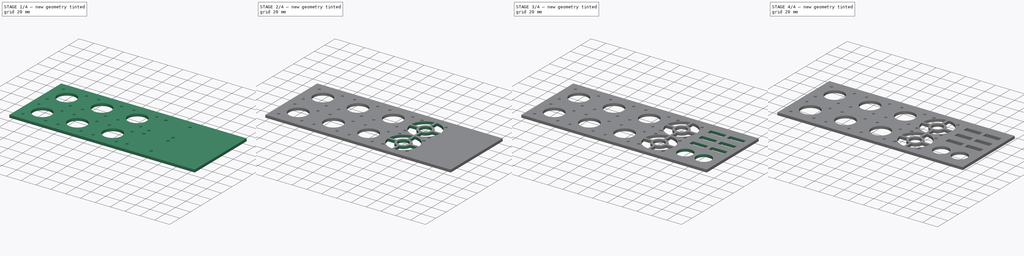
[diagram: build sequence overview — one tinted view per stage of 4, left to right]
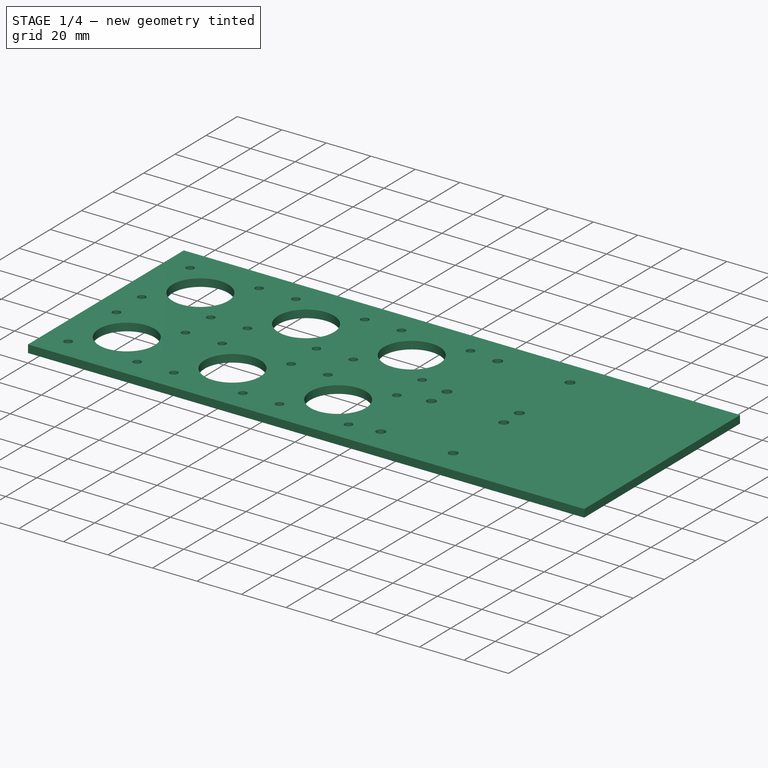
[diagram: stage 1 of 4 — iso view after this stage's code; geometry added in this stage tinted green]
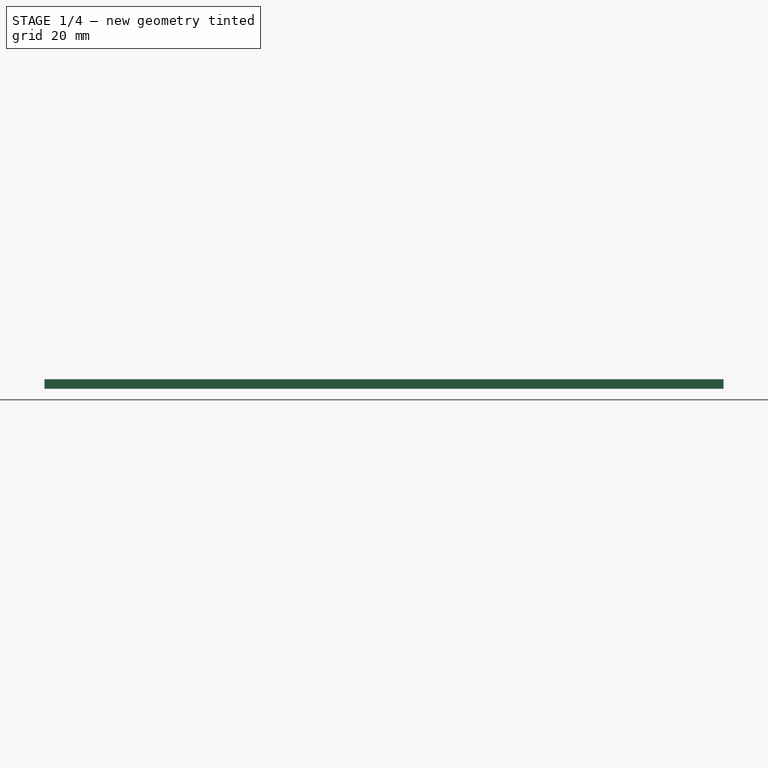
[diagram: stage 1 of 4 — front view after this stage's code; geometry added in this stage tinted green]
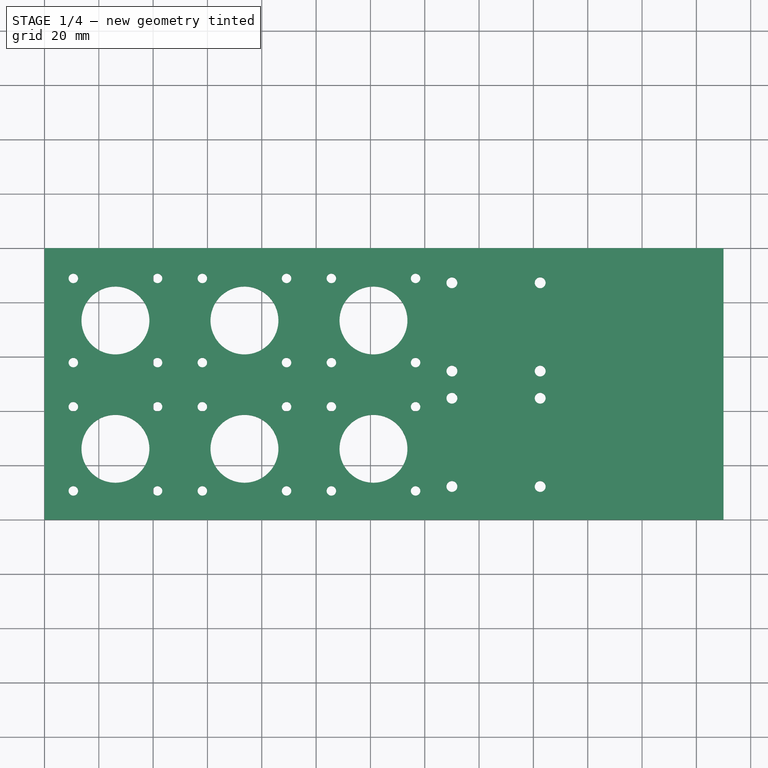
[diagram: stage 1 of 4 — top view after this stage's code; geometry added in this stage tinted green]
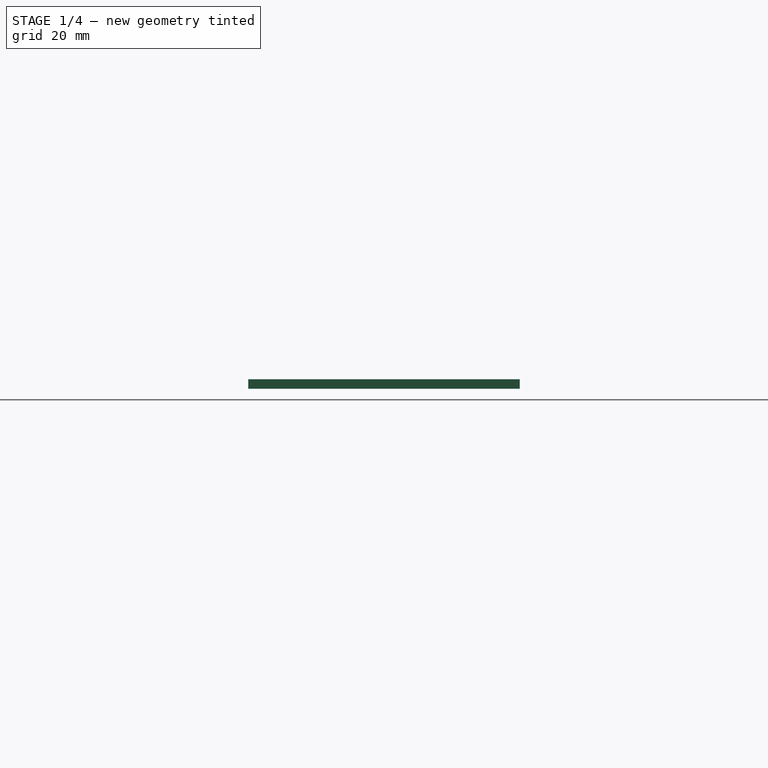
[diagram: stage 1 of 4 — right view after this stage's code; geometry added in this stage tinted green]
FCSTD DOCUMENT  (FreeCAD 0.16R5861 (Git))
Label: control_box_test_fixture_front
License: CreativeCommons Attribution-ShareAlike
LicenseURL: http://creativecommons.org/licenses/by-sa/4.0/
objects: Sketcher::SketchObject×9, PartDesign::Pocket×7, PartDesign::LinearPattern×4, PartDesign::Pad×2, PartDesign::Fillet×1
note: 32 computed .brp shape members not serialized (recipe doc carries the construction recipe); baked Part::Feature solids carry a one-line shape summary decoded from their .brp

FEATURE [Sketcher::SketchObject] Sketch
  sketch-geometry (4):
    g0: LineSegment StartX=0 StartY=0 StartZ=0 EndX=250 EndY=0 EndZ=0
    g1: LineSegment StartX=250 StartY=0 StartZ=0 EndX=250 EndY=100 EndZ=0
    g2: LineSegment StartX=250 StartY=100 StartZ=0 EndX=0 EndY=100 EndZ=0
    g3: LineSegment StartX=0 StartY=100 StartZ=0 EndX=0 EndY=0 EndZ=0
  constraints (11):
    c: Coincident(g0,g1)
    c: Coincident(g1,g2)
    c: Coincident(g2,g3)
    c: Coincident(g3,g0)
    c: Horizontal(g0)
    c: Horizontal(g2)
    c: Vertical(g1)
    c: Vertical(g3)
    c: Coincident(g0,g-1)
    c: DistanceY(g3) = -100
    c: DistanceX(g2) = -250
FEATURE [PartDesign::Pad] Pad
  Length = 3.5
  Length2 = 100
  Sketch = -> Sketch
  Type = 0
FEATURE [Sketcher::SketchObject] Sketch001
  Support = -> Pad [Face6]
  sketch-geometry (30):
    g0: LineSegment [constr] StartX=47.25 StartY=94.5 StartZ=0 EndX=5 EndY=94.5 EndZ=0
    g1: LineSegment [constr] StartX=5 StartY=94.5 StartZ=0 EndX=5 EndY=52.25 EndZ=0
    g2: LineSegment [constr] StartX=5 StartY=52.25 StartZ=0 EndX=47.25 EndY=52.25 EndZ=0
    g3: LineSegment [constr] StartX=47.25 StartY=52.25 StartZ=0 EndX=47.25 EndY=94.5 EndZ=0
    g4: Circle [constr] CenterX=26.125 CenterY=73.375 CenterZ=0 NormalX=0 NormalY=0 NormalZ=1 Radius=29.8753
    g5: LineSegment [constr] StartX=47.25 StartY=47.25 StartZ=0 EndX=5 EndY=47.25 EndZ=0
    g6: LineSegment [constr] StartX=5 StartY=47.25 StartZ=0 EndX=5 EndY=5 EndZ=0
    g7: LineSegment [constr] StartX=5 StartY=5 StartZ=0 EndX=47.25 EndY=5 EndZ=0
    g8: LineSegment [constr] StartX=47.25 StartY=5 StartZ=0 EndX=47.25 EndY=47.25 EndZ=0
    g9: Circle [constr] CenterX=26.125 CenterY=26.125 CenterZ=0 NormalX=0 NormalY=0 NormalZ=1 Radius=29.8753
    g10: Circle CenterX=26.125 CenterY=73.375 CenterZ=0 NormalX=0 NormalY=0 NormalZ=1 Radius=12.5
    g11: Circle CenterX=26.125 CenterY=26.125 CenterZ=0 NormalX=0 NormalY=0 NormalZ=1 Radius=12.5
    g12: LineSegment [constr] StartX=41.625 StartY=57.875 StartZ=0 EndX=41.625 EndY=88.875 EndZ=0
    g13: LineSegment [constr] StartX=41.625 StartY=88.875 StartZ=0 EndX=10.625 EndY=88.875 EndZ=0
    g14: LineSegment [constr] StartX=10.625 StartY=88.875 StartZ=0 EndX=10.625 EndY=57.875 EndZ=0
    g15: LineSegment [constr] StartX=10.625 StartY=57.875 StartZ=0 EndX=41.625 EndY=57.875 EndZ=0
    g16: Circle [constr] CenterX=26.125 CenterY=73.375 CenterZ=0 NormalX=0 NormalY=0 NormalZ=1 Radius=21.9203
    g17: LineSegment [constr] StartX=41.625 StartY=10.625 StartZ=0 EndX=41.625 EndY=41.625 EndZ=0
    g18: LineSegment [constr] StartX=41.625 StartY=41.625 StartZ=0 EndX=10.625 EndY=41.625 EndZ=0
    g19: LineSegment [constr] StartX=10.625 StartY=41.625 StartZ=0 EndX=10.625 EndY=10.625 EndZ=0
    g20: LineSegment [constr] StartX=10.625 StartY=10.625 StartZ=0 EndX=41.625 EndY=10.625 EndZ=0
    g21: Circle [constr] CenterX=26.125 CenterY=26.125 CenterZ=0 NormalX=0 NormalY=0 NormalZ=1 Radius=21.9203
    g22: Circle CenterX=10.625 CenterY=88.875 CenterZ=0 NormalX=0 NormalY=0 NormalZ=1 Radius=1.75
    g23: Circle CenterX=41.625 CenterY=88.875 CenterZ=0 NormalX=0 NormalY=0 NormalZ=1 Radius=1.75
    g24: Circle CenterX=41.625 CenterY=57.875 CenterZ=0 NormalX=0 NormalY=0 NormalZ=1 Radius=1.75
    g25: Circle CenterX=10.625 CenterY=57.875 CenterZ=0 NormalX=0 NormalY=0 NormalZ=1 Radius=1.75
    g26: Circle CenterX=41.625 CenterY=41.625 CenterZ=0 NormalX=0 NormalY=0 NormalZ=1 Radius=1.75
    g27: Circle CenterX=10.625 CenterY=41.625 CenterZ=0 NormalX=0 NormalY=0 NormalZ=1 Radius=1.75
    g28: Circle CenterX=10.625 CenterY=10.625 CenterZ=0 NormalX=0 NormalY=0 NormalZ=1 Radius=1.75
    g29: Circle CenterX=41.625 CenterY=10.625 CenterZ=0 NormalX=0 NormalY=0 NormalZ=1 Radius=1.75
  constraints (70):
    c: Coincident(g0,g1)
    c: Coincident(g1,g2)
    c: Coincident(g2,g3)
    c: Coincident(g3,g0)
    c: Equal(g0,g1)
    c: Equal(g0,g2)
    c: Equal(g0,g3)
    c: PointOnObject(g0,g4)
    c: PointOnObject(g1,g4)
    c: PointOnObject(g2,g4)
    c: PointOnObject(g3,g4)
    c: Coincident(g5,g6)
    c: Coincident(g6,g7)
    c: Coincident(g7,g8)
    c: Coincident(g8,g5)
    c: Equal(g5,g6)
    c: Equal(g5,g7)
    c: Equal(g5,g8)
    c: PointOnObject(g5,g9)
    c: PointOnObject(g6,g9)
    c: PointOnObject(g7,g9)
    c: PointOnObject(g8,g9)
    c: Coincident(g10,g4)
    c: Coincident(g9,g11)
    c: Radius(g11) = 12.5
    c: Equal(g11,g10)
    c: Coincident(g12,g13)
    c: Coincident(g13,g14)
    c: Coincident(g14,g15)
    c: Coincident(g15,g12)
    c: Equal(g12,g13)
    c: Equal(g12,g14)
    c: Equal(g12,g15)
    c: PointOnObject(g12,g16)
    c: PointOnObject(g13,g16)
    c: PointOnObject(g14,g16)
    c: PointOnObject(g15,g16)
    c: Coincident(g16,g4)
    c: Coincident(g17,g18)
    c: Coincident(g18,g19)
    c: Coincident(g19,g20)
    c: Coincident(g20,g17)
    c: Equal(g17,g18)
    c: Equal(g17,g19)
    c: Equal(g17,g20)
    c: PointOnObject(g17,g21)
    c: PointOnObject(g18,g21)
    c: PointOnObject(g19,g21)
    c: PointOnObject(g20,g21)
    c: Coincident(g9,g21)
    c: Horizontal(g13)
    c: Horizontal(g18)
    c: Coincident(g17,g29)
    c: Coincident(g19,g28)
    c: Coincident(g17,g26)
    c: Coincident(g18,g27)
    c: Coincident(g12,g24)
    c: Coincident(g14,g25)
    c: Coincident(g12,g23)
    c: Coincident(g13,g22)
    c: Radius(g22) = 1.75
    c: Equal(g22,g23)
    c: Equal(g22,g24)
    c: Equal(g22,g25)
    c: Equal(g22,g27)
    c: Equal(g22,g26)
    c: Equal(g22,g29)
    c: Equal(g22,g28)
    c: DistanceX(g15) = 31
    c: DistanceX(g18) = -31
FEATURE [PartDesign::Pocket] Pocket
  Length = 5
  Sketch = -> Sketch001
  Type = 1
FEATURE [PartDesign::LinearPattern] LinearPattern
  Direction = -> Sketch001 [H_Axis]
  Length = 95
  Occurrences = 3
  Originals = -> [Pocket]
FEATURE [Sketcher::SketchObject] Sketch002
  Support = -> LinearPattern [Face5]
  sketch-geometry (18):
    g0: LineSegment [constr] StartX=182.5 StartY=87.25 StartZ=0 EndX=150 EndY=87.25 EndZ=0
    g1: LineSegment [constr] StartX=150 StartY=87.25 StartZ=0 EndX=150 EndY=54.75 EndZ=0
    g2: LineSegment [constr] StartX=150 StartY=54.75 StartZ=0 EndX=182.5 EndY=54.75 EndZ=0
    g3: LineSegment [constr] StartX=182.5 StartY=54.75 StartZ=0 EndX=182.5 EndY=87.25 EndZ=0
    g4: Circle [constr] CenterX=166.25 CenterY=71 CenterZ=0 NormalX=0 NormalY=0 NormalZ=1 Radius=22.981
    g5: Circle CenterX=150 CenterY=87.25 CenterZ=0 NormalX=0 NormalY=0 NormalZ=1 Radius=2
    g6: Circle CenterX=150 CenterY=54.75 CenterZ=0 NormalX=0 NormalY=0 NormalZ=1 Radius=2
    g7: Circle CenterX=182.5 CenterY=54.75 CenterZ=0 NormalX=0 NormalY=0 NormalZ=1 Radius=2
    g8: Circle CenterX=182.5 CenterY=87.25 CenterZ=0 NormalX=0 NormalY=0 NormalZ=1 Radius=2
    g9: LineSegment [constr] StartX=150 StartY=12.25 StartZ=0 EndX=182.5 EndY=12.25 EndZ=0
    g10: LineSegment [constr] StartX=182.5 StartY=12.25 StartZ=0 EndX=182.5 EndY=44.75 EndZ=0
    g11: LineSegment [constr] StartX=182.5 StartY=44.75 StartZ=0 EndX=150 EndY=44.75 EndZ=0
    g12: LineSegment [constr] StartX=150 StartY=44.75 StartZ=0 EndX=150 EndY=12.25 EndZ=0
    g13: Circle [constr] CenterX=166.25 CenterY=28.5 CenterZ=0 NormalX=0 NormalY=0 NormalZ=1 Radius=22.981
    g14: Circle CenterX=150 CenterY=44.75 CenterZ=0 NormalX=0 NormalY=0 NormalZ=1 Radius=2
    g15: Circle CenterX=182.5 CenterY=44.75 CenterZ=0 NormalX=0 NormalY=0 NormalZ=1 Radius=2
    g16: Circle CenterX=182.5 CenterY=12.25 CenterZ=0 NormalX=0 NormalY=0 NormalZ=1 Radius=2
    g17: Circle CenterX=150 CenterY=12.25 CenterZ=0 NormalX=0 NormalY=0 NormalZ=1 Radius=2
  constraints (44):
    c: Coincident(g0,g1)
    c: Coincident(g1,g2)
    c: Coincident(g2,g3)
    c: Coincident(g3,g0)
    c: Equal(g0,g1)
    c: Equal(g0,g2)
    c: Equal(g0,g3)
    c: PointOnObject(g0,g4)
    c: PointOnObject(g1,g4)
    c: PointOnObject(g2,g4)
    c: PointOnObject(g3,g4)
    c: DistanceX(g0) = -32.5
    c: Horizontal(g0)
    c: Coincident(g0,g8)
    c: Coincident(g0,g5)
    c: Coincident(g1,g6)
    c: Coincident(g2,g7)
    c: Radius(g6) = 2
    c: Equal(g6,g5)
    c: Equal(g6,g8)
    c: Equal(g6,g7)
    c: Coincident(g9,g10)
    c: Coincident(g10,g11)
    c: Coincident(g11,g12)
    c: Coincident(g12,g9)
    c: Equal(g9,g10)
    c: Equal(g9,g11)
    c: Equal(g9,g12)
    c: PointOnObject(g9,g13)
    c: PointOnObject(g10,g13)
    c: PointOnObject(g11,g13)
    c: PointOnObject(g12,g13)
    c: Horizontal(g11)
    c: DistanceY(g1,g11) = -10
    c: DistanceX(g11,g1) = 0
    c: Coincident(g14,g11)
    c: Coincident(g17,g9)
    c: Coincident(g10,g15)
    c: Coincident(g9,g16)
    c: Equal(g14,g15)
    c: Equal(g16,g17)
    c: Equal(g17,g6)
    c: DistanceY(g-1,g13) = 28.5
    c: DistanceX(g-1,g9) = 150
FEATURE [PartDesign::Pocket] Pocket001
  Length = 5
  Sketch = -> Sketch002
  Type = 1
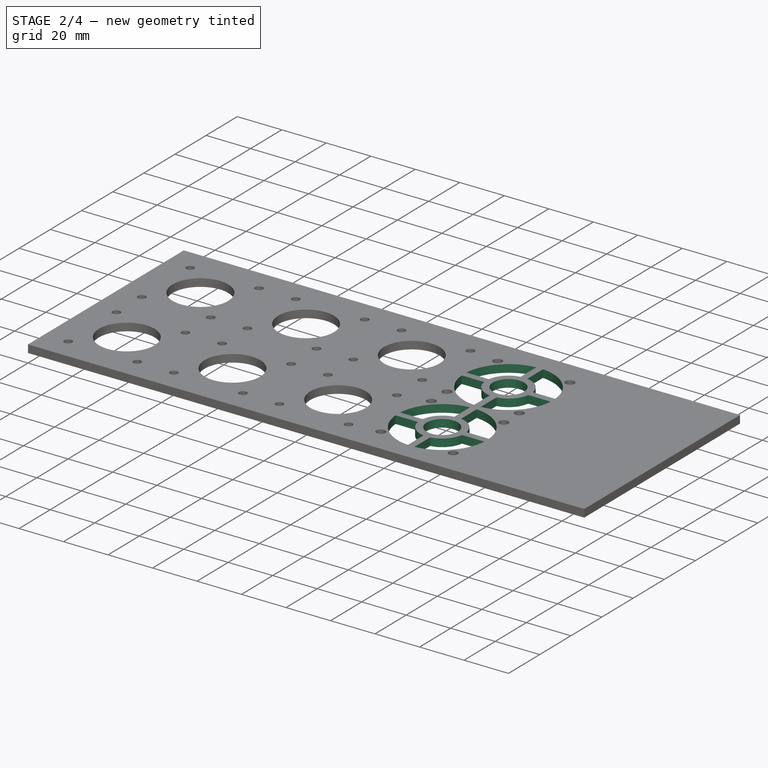
[diagram: stage 2 of 4 — iso view after this stage's code; geometry added in this stage tinted green]
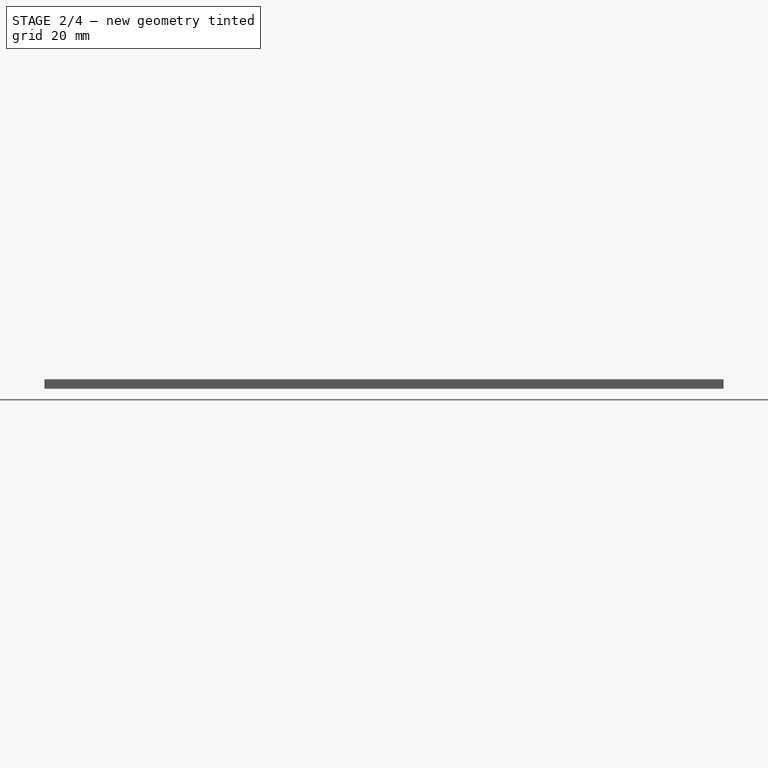
[diagram: stage 2 of 4 — front view after this stage's code; geometry added in this stage tinted green]
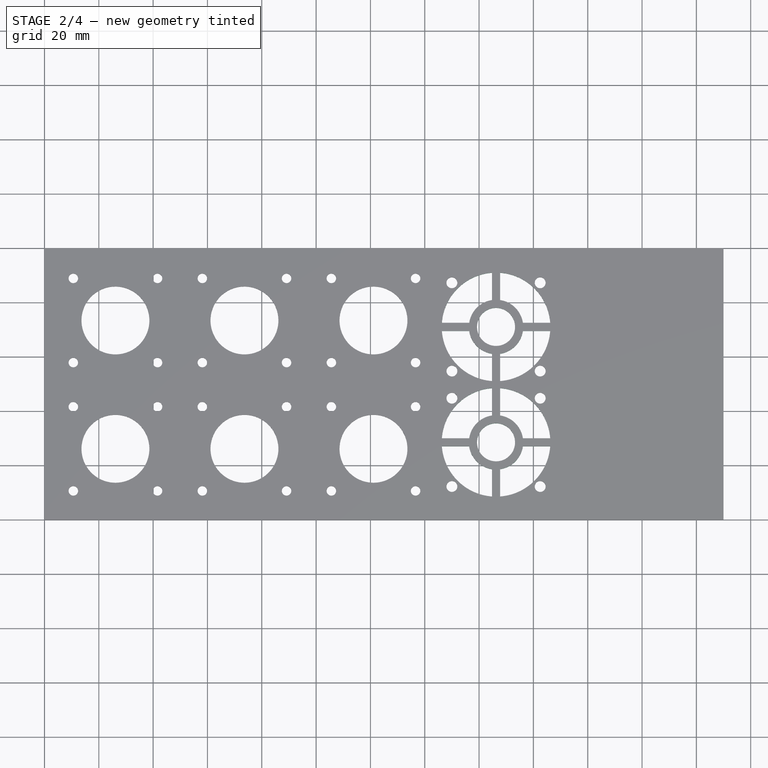
[diagram: stage 2 of 4 — top view after this stage's code; geometry added in this stage tinted green]
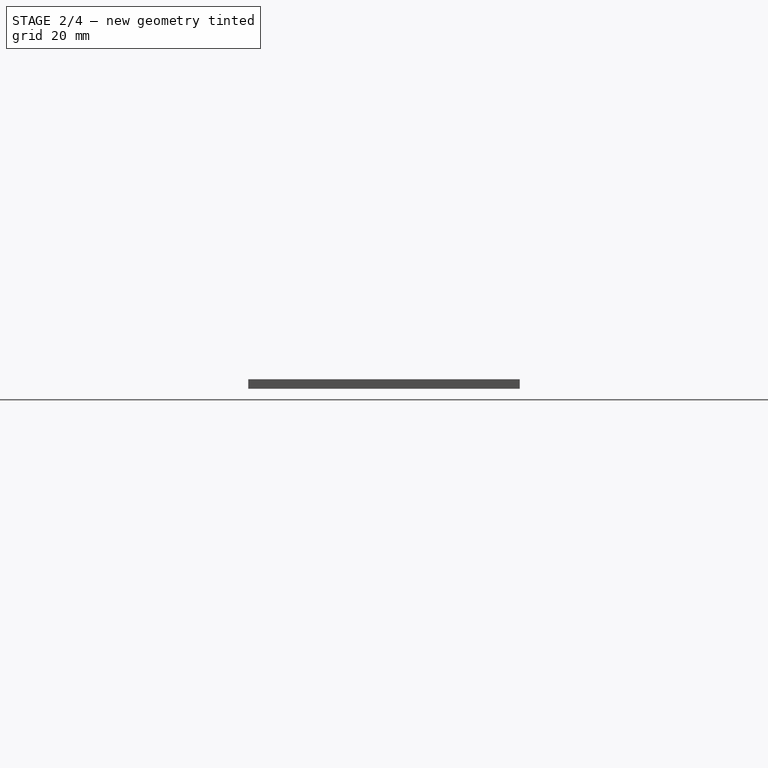
[diagram: stage 2 of 4 — right view after this stage's code; geometry added in this stage tinted green]
FEATURE [Sketcher::SketchObject] Sketch003
  Support = -> Pocket001 [Face5]
  sketch-geometry (52):
    g0: ArcOfCircle CenterX=166.25 CenterY=71 CenterZ=0 NormalX=0 NormalY=0 NormalZ=1 Radius=10 StartAngle=4.86298 EndAngle=6.13262
    g1: ArcOfCircle CenterX=166.27 CenterY=28.5166 CenterZ=0 NormalX=0 NormalY=0 NormalZ=1 Radius=10 StartAngle=1.72339 EndAngle=2.9927
    g2: ArcOfCircle CenterX=208.75 CenterY=28.5 CenterZ=0 NormalX=0 NormalY=0 NormalZ=1 Radius=10 StartAngle=3.29214 EndAngle=4.56182
    g3: ArcOfCircle CenterX=166.25 CenterY=71 CenterZ=0 NormalX=0 NormalY=0 NormalZ=1 Radius=20 StartAngle=1.64587 EndAngle=3.06652
    g4: ArcOfCircle CenterX=166.25 CenterY=28.4999 CenterZ=0 NormalX=0 NormalY=0 NormalZ=1 Radius=20 StartAngle=1.64588 EndAngle=3.06652
    g5: ArcOfCircle CenterX=208.75 CenterY=28.5 CenterZ=0 NormalX=0 NormalY=0 NormalZ=1 Radius=20 StartAngle=3.21665 EndAngle=4.63732
    g6: LineSegment StartX=167.75 StartY=90.9437 StartZ=0 EndX=167.75 EndY=80.8868 EndZ=0
    g7: LineSegment StartX=146.307 StartY=30 StartZ=0 EndX=156.381 EndY=30 EndZ=0
    g8: LineSegment StartX=164.75 StartY=80.8869 StartZ=0 EndX=164.75 EndY=90.9437 EndZ=0
    g9: LineSegment StartX=176.137 StartY=72.5 StartZ=0 EndX=186.194 EndY=72.5 EndZ=0
    g10: LineSegment StartX=167.75 StartY=61.1132 StartZ=0 EndX=167.75 EndY=51.0563 EndZ=0
    g11: LineSegment StartX=156.363 StartY=69.5 StartZ=0 EndX=146.306 EndY=69.5 EndZ=0
    g12: LineSegment StartX=186.194 StartY=69.5 StartZ=0 EndX=176.137 EndY=69.5 EndZ=0
    g13: LineSegment StartX=146.306 StartY=72.5 StartZ=0 EndX=156.363 EndY=72.5 EndZ=0
    g14: ArcOfCircle CenterX=166.25 CenterY=71 CenterZ=0 NormalX=0 NormalY=0 NormalZ=1 Radius=10 StartAngle=0.150568 EndAngle=1.4202
    g15: ArcOfCircle CenterX=166.25 CenterY=71 CenterZ=0 NormalX=0 NormalY=0 NormalZ=1 Radius=10 StartAngle=3.29216 EndAngle=4.56182
    g16: ArcOfCircle CenterX=166.25 CenterY=71 CenterZ=0 NormalX=0 NormalY=0 NormalZ=1 Radius=10 StartAngle=1.72136 EndAngle=2.99102
    g17: ArcOfCircle CenterX=166.25 CenterY=71 CenterZ=0 NormalX=0 NormalY=0 NormalZ=1 Radius=20 StartAngle=0.0750705 EndAngle=1.49571
    g18: ArcOfCircle CenterX=166.25 CenterY=71 CenterZ=0 NormalX=0 NormalY=0 NormalZ=1 Radius=20 StartAngle=4.78747 EndAngle=6.20811
    g19: ArcOfCircle CenterX=166.25 CenterY=71 CenterZ=0 NormalX=0 NormalY=0 NormalZ=1 Radius=20 StartAngle=3.21666 EndAngle=4.63732
    g20: LineSegment StartX=167.75 StartY=48.4436 StartZ=0 EndX=167.75 EndY=38.4064 EndZ=0
    g21: LineSegment StartX=164.75 StartY=51.0563 StartZ=0 EndX=164.75 EndY=61.1131 EndZ=0
    g22: ArcOfCircle CenterX=166.27 CenterY=28.5166 CenterZ=0 NormalX=0 NormalY=0 NormalZ=1 Radius=10 StartAngle=0.148891 EndAngle=1.42223
    g23: LineSegment StartX=176.159 StartY=30 StartZ=0 EndX=186.194 EndY=30 EndZ=0
    g24: LineSegment StartX=164.75 StartY=38.4004 StartZ=0 EndX=164.75 EndY=48.4436 EndZ=0
    g25: ArcOfCircle CenterX=166.27 CenterY=28.5166 CenterZ=0 NormalX=0 NormalY=0 NormalZ=1 Radius=10 StartAngle=3.29382 EndAngle=4.55979
    g26: LineSegment StartX=156.386 StartY=27.0002 StartZ=0 EndX=146.307 EndY=27.0002 EndZ=0
    g27: ArcOfCircle CenterX=166.27 CenterY=28.5166 CenterZ=0 NormalX=0 NormalY=0 NormalZ=1 Radius=10 StartAngle=4.86096 EndAngle=6.13096
    g28: LineSegment StartX=167.75 StartY=18.6267 StartZ=0 EndX=167.75 EndY=8.55623 EndZ=0
    g29: ArcOfCircle CenterX=166.27 CenterY=28.5166 CenterZ=0 NormalX=0 NormalY=0 NormalZ=1 Radius=10 StartAngle=0.148891 EndAngle=1.42223
    g30: ArcOfCircle CenterX=166.27 CenterY=28.5166 CenterZ=0 NormalX=0 NormalY=0 NormalZ=1 Radius=10 StartAngle=1.72339 EndAngle=2.9927
    g31: ArcOfCircle CenterX=166.25 CenterY=28.4999 CenterZ=0 NormalX=0 NormalY=0 NormalZ=1 Radius=20 StartAngle=0.0750755 EndAngle=1.49572
    g32: LineSegment StartX=186.194 StartY=27.0002 StartZ=0 EndX=176.154 EndY=27.0002 EndZ=0
    g33: LineSegment StartX=188.806 StartY=30 StartZ=0 EndX=198.863 EndY=30 EndZ=0
    g34: ArcOfCircle CenterX=208.75 CenterY=28.5 CenterZ=0 NormalX=0 NormalY=0 NormalZ=1 Radius=10 StartAngle=0.150568 EndAngle=1.42023
    g35: LineSegment StartX=198.863 StartY=27.0002 StartZ=0 EndX=188.806 EndY=27.0002 EndZ=0
    g36: ArcOfCircle CenterX=166.25 CenterY=28.4999 CenterZ=0 NormalX=0 NormalY=0 NormalZ=1 Radius=20 StartAngle=3.21665 EndAngle=4.63731
    g37: ArcOfCircle CenterX=166.25 CenterY=28.4999 CenterZ=0 NormalX=0 NormalY=0 NormalZ=1 Radius=20 StartAngle=4.78746 EndAngle=6.20813
    g38: LineSegment StartX=164.75 StartY=8.55625 StartZ=0 EndX=164.75 EndY=18.6328 EndZ=0
    g39: ArcOfCircle CenterX=208.75 CenterY=28.5 CenterZ=0 NormalX=0 NormalY=0 NormalZ=1 Radius=20 StartAngle=1.64587 EndAngle=3.06652
    g40: ArcOfCircle CenterX=208.75 CenterY=28.5 CenterZ=0 NormalX=0 NormalY=0 NormalZ=1 Radius=10 StartAngle=1.72136 EndAngle=2.99102
    g41: ArcOfCircle CenterX=208.75 CenterY=28.5 CenterZ=0 NormalX=0 NormalY=0 NormalZ=1 Radius=10 StartAngle=1.72136 EndAngle=2.99102
    g42: LineSegment StartX=207.25 StartY=18.6131 StartZ=0 EndX=207.25 EndY=8.55633 EndZ=0
    g43: LineSegment StartX=218.637 StartY=30 StartZ=0 EndX=228.694 EndY=30 EndZ=0
    g44: LineSegment StartX=210.25 StartY=38.3869 StartZ=0 EndX=210.25 EndY=48.4437 EndZ=0
    g45: ArcOfCircle CenterX=208.75 CenterY=28.5 CenterZ=0 NormalX=0 NormalY=0 NormalZ=1 Radius=10 StartAngle=0.150568 EndAngle=1.42023
    g46: ArcOfCircle CenterX=208.75 CenterY=28.5 CenterZ=0 NormalX=0 NormalY=0 NormalZ=1 Radius=20 StartAngle=0.0750705 EndAngle=1.49573
    g47: LineSegment StartX=228.694 StartY=27.0002 StartZ=0 EndX=218.637 EndY=27.0002 EndZ=0
    g48: LineSegment StartX=210.25 StartY=8.55633 StartZ=0 EndX=210.25 EndY=18.6131 EndZ=0
    g49: ArcOfCircle CenterX=208.75 CenterY=28.5 CenterZ=0 NormalX=0 NormalY=0 NormalZ=1 Radius=10 StartAngle=4.86296 EndAngle=6.13264
    g50: LineSegment StartX=207.25 StartY=48.4437 StartZ=0 EndX=207.25 EndY=38.3869 EndZ=0
    g51: ArcOfCircle CenterX=208.75 CenterY=28.5 CenterZ=0 NormalX=0 NormalY=0 NormalZ=1 Radius=20 StartAngle=4.78746 EndAngle=6.20813
  constraints (94):
    c: Radius(g1) = 10
    c: Equal(g1,g0)
    c: Equal(g1,g2)
    c: Radius(g3) = 20
    c: Equal(g3,g4)
    c: Equal(g5,g4)
    c: Vertical(g6)
    c: Horizontal(g7)
    c: Coincident(g0,g10)
    c: Coincident(g15,g21)
    c: Equal(g0,g14)
    c: Coincident(g0,g12)
    c: Coincident(g14,g9)
    c: Equal(g14,g15)
    c: Equal(g14,g16)
    c: Coincident(g3,g8)
    c: Coincident(g17,g6)
    c: Equal(g3,g17)
    c: Coincident(g18,g12)
    c: Coincident(g17,g9)
    c: Equal(g3,g18)
    c: Equal(g3,g19)
    c: Coincident(g3,g13)
    c: Coincident(g19,g11)
    c: Coincident(g10,g18)
    c: Coincident(g20,g31)
    c: Coincident(g24,g4)
    c: Coincident(g21,g19)
    c: Equal(g1,g22)
    c: Coincident(g23,g22)
    c: Coincident(g20,g22)
    c: Coincident(g24,g1)
    c: Equal(g1,g25)
    c: Coincident(g1,g7)
    c: Equal(g25,g27)
    c: Coincident(g38,g25)
    c: Coincident(g28,g27)
    c: Equal(g27,g29)
    c: Equal(g29,g30)
    c: Equal(g4,g31)
    c: Coincident(g35,g5)
    c: Coincident(g32,g37)
    c: Coincident(g23,g31)
    c: Coincident(g33,g39)
    c: Equal(g2,g34)
    c: Coincident(g2,g34)
    c: Equal(g4,g36)
    c: Equal(g36,g37)
    c: Coincident(g26,g36)
    c: Coincident(g7,g4)
    c: Coincident(g38,g36)
    c: Coincident(g28,g37)
    c: Equal(g5,g39)
    c: Coincident(g5,g39)
    c: Equal(g2,g40)
    c: Coincident(g2,g40)
    c: Equal(g34,g41)
    c: Coincident(g34,g41)
    c: Coincident(g50,g40)
    c: Coincident(g33,g40)
    c: Coincident(g44,g45)
    c: Equal(g2,g45)
    c: Coincident(g49,g47)
    c: Coincident(g2,g45)
    c: Equal(g5,g46)
    c: Coincident(g5,g46)
    c: Coincident(g47,g51)
    c: Coincident(g43,g46)
    c: Equal(g2,g49)
    c: Coincident(g2,g42)
    c: Coincident(g49,g48)
    c: Coincident(g2,g49)
    c: Coincident(g50,g39)
    c: Coincident(g6,g14)
    c: Coincident(g8,g16)
    c: Coincident(g13,g16)
    c: Coincident(g11,g15)
    c: Coincident(g20,g29)
    c: Coincident(g1,g30)
    c: Coincident(g1,g30)
    c: Coincident(g25,g26)
    c: Coincident(g40,g41)
    c: Coincident(g44,g46)
    c: Coincident(g34,g44)
    c: Coincident(g34,g43)
    c: Coincident(g34,g45)
    c: Equal(g5,g51)
    c: Coincident(g5,g42)
    c: Coincident(g51,g48)
    c: Coincident(g5,g51)
    c: Coincident(g2,g35)
    c: Coincident(g33,g41)
    c: Coincident(g22,g29)
    c: Coincident(g27,g32)
FEATURE [PartDesign::Pocket] Pocket002
  Length = 5
  Sketch = -> Sketch003
  Type = 1
FEATURE [PartDesign::LinearPattern] LinearPattern001
  Direction = -> Sketch003 [V_Axis]
  Length = 42.5
  Occurrences = 2
  Originals = -> [Pocket002]
  Reversed = true
FEATURE [Sketcher::SketchObject] Sketch004
  ExternalGeometry = -> [LinearPattern001]
  Support = -> LinearPattern001 [Face5]
  sketch-geometry (2):
    g0: Circle CenterX=166.25 CenterY=71 CenterZ=0 NormalX=0 NormalY=0 NormalZ=1 Radius=7
    g1: Circle CenterX=166.25 CenterY=28.5 CenterZ=0 NormalX=0 NormalY=0 NormalZ=1 Radius=7
  constraints (4):
    c: Coincident(g1,g-4)
    c: Coincident(g0,g-3)
    c: Radius(g0) = 7
    c: Equal(g0,g1)
FEATURE [PartDesign::Pocket] Pocket003
  Length = 5
  Sketch = -> Sketch004
  Type = 1
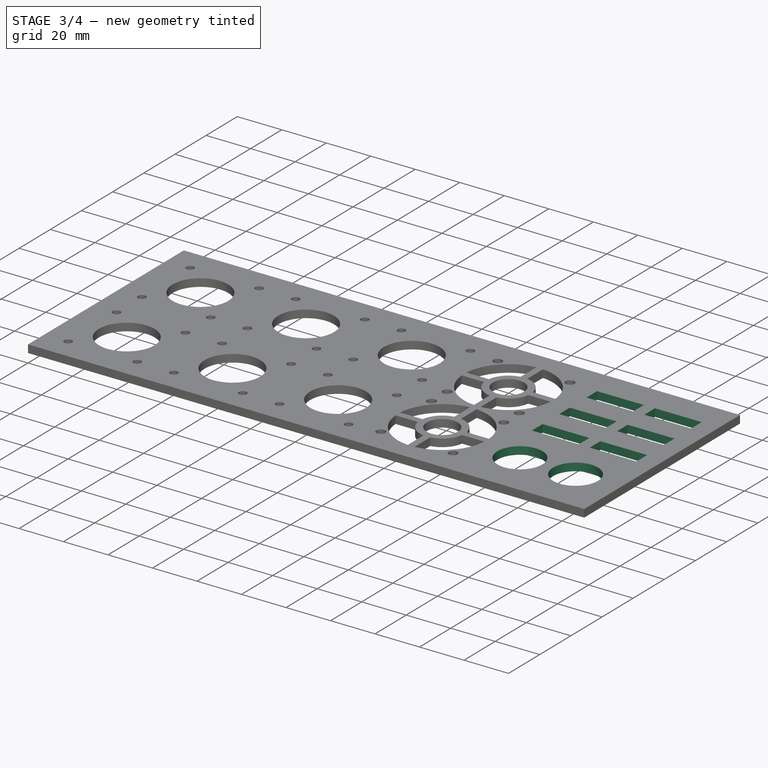
[diagram: stage 3 of 4 — iso view after this stage's code; geometry added in this stage tinted green]
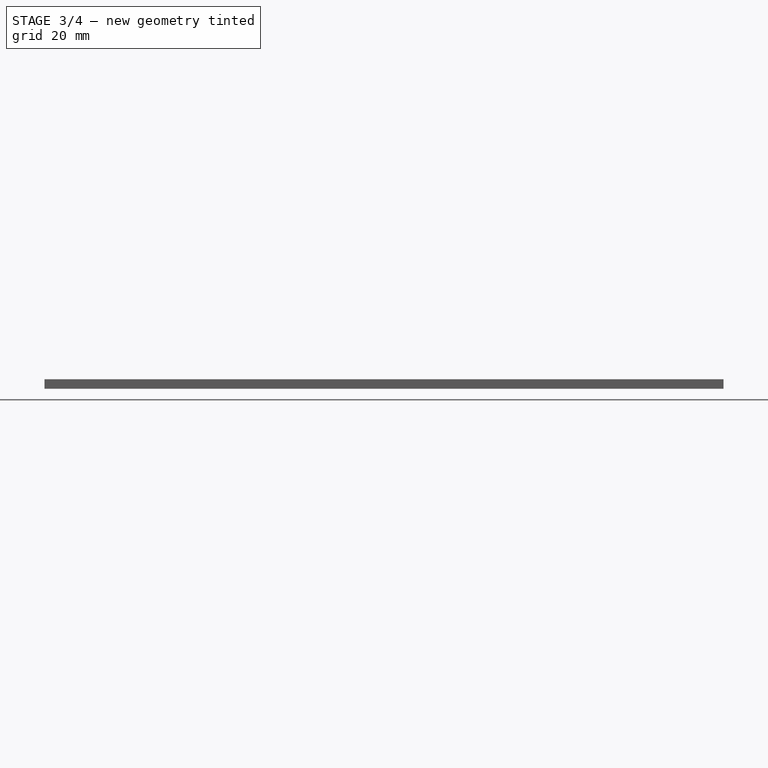
[diagram: stage 3 of 4 — front view after this stage's code; geometry added in this stage tinted green]
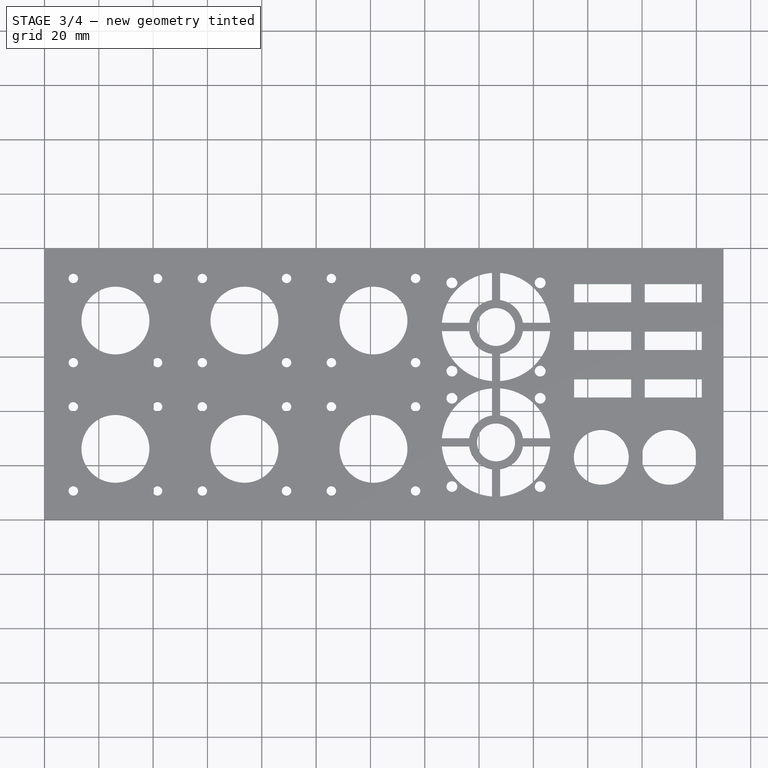
[diagram: stage 3 of 4 — top view after this stage's code; geometry added in this stage tinted green]
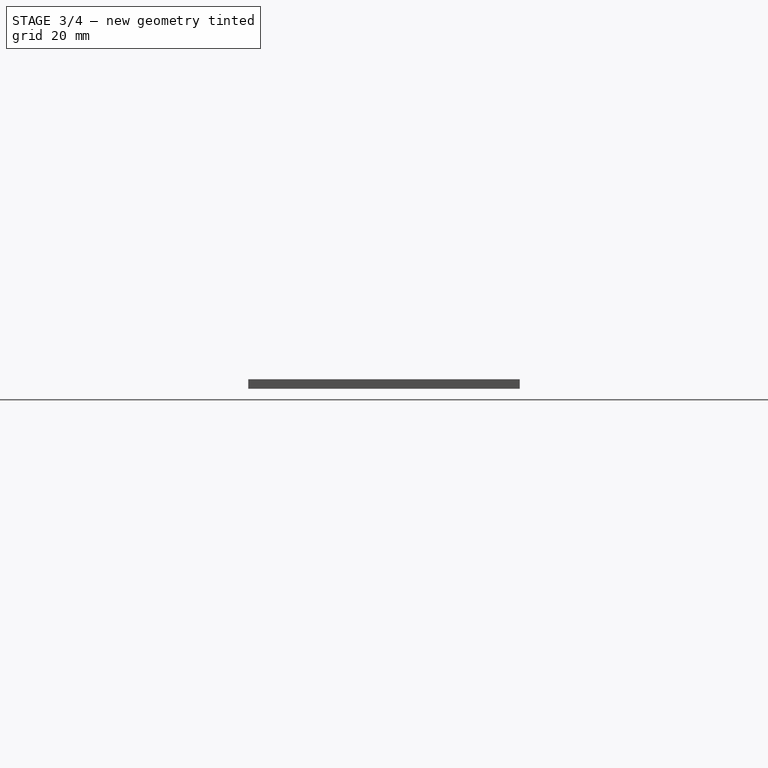
[diagram: stage 3 of 4 — right view after this stage's code; geometry added in this stage tinted green]
FEATURE [Sketcher::SketchObject] Sketch005
  Placement = pos=(0,0,3.5) rot=(0,0,1;0rad)
  Support = -> Pocket003 [Face5]
  sketch-geometry (2):
    g0: Circle CenterX=205 CenterY=23 CenterZ=0 NormalX=0 NormalY=0 NormalZ=1 Radius=10.1
    g1: Circle CenterX=230 CenterY=23 CenterZ=0 NormalX=0 NormalY=0 NormalZ=1 Radius=10.1
  constraints (6):
    c: Radius(g0) = 10.1
    c: Equal(g0,g1)
    c: DistanceY(g1,g0) = 0
    c: DistanceX(g1,g0) = -25
    c: DistanceY(g-1,g0) = 23
    c: DistanceX(g-1,g0) = 205
FEATURE [PartDesign::Pocket] Pocket004
  Length = 5
  Sketch = -> Sketch005
  Type = 1
FEATURE [Sketcher::SketchObject] Sketch006
  ExternalGeometry = -> [Pocket004]
  Placement = pos=(0,0,3.5) rot=(0,0,1;0rad)
  Support = -> Pocket004 [Face5]
  sketch-geometry (8):
    g0: LineSegment StartX=195 StartY=80 StartZ=0 EndX=216 EndY=80 EndZ=0
    g1: LineSegment StartX=216 StartY=80 StartZ=0 EndX=216 EndY=86.8 EndZ=0
    g2: LineSegment StartX=216 StartY=86.8 StartZ=0 EndX=195 EndY=86.8 EndZ=0
    g3: LineSegment StartX=195 StartY=86.8 StartZ=0 EndX=195 EndY=80 EndZ=0
    g4: LineSegment StartX=221 StartY=80 StartZ=0 EndX=242 EndY=80 EndZ=0
    g5: LineSegment StartX=242 StartY=80 StartZ=0 EndX=242 EndY=86.8 EndZ=0
    g6: LineSegment StartX=242 StartY=86.8 StartZ=0 EndX=221 EndY=86.8 EndZ=0
    g7: LineSegment StartX=221 StartY=86.8 StartZ=0 EndX=221 EndY=80 EndZ=0
  constraints (28):
    c: Coincident(g0,g1)
    c: Coincident(g1,g2)
    c: Coincident(g2,g3)
    c: Coincident(g3,g0)
    c: Horizontal(g0)
    c: Horizontal(g2)
    c: Vertical(g1)
    c: Vertical(g3)
    c: Coincident(g4,g5)
    c: Coincident(g5,g6)
    c: Coincident(g6,g7)
    c: Coincident(g7,g4)
    c: Horizontal(g4)
    c: Horizontal(g6)
    c: Vertical(g5)
    c: Vertical(g7)
    c: Equal(g6,g2)
    c: Equal(g2,g0)
    c: Equal(g0,g4)
    c: Equal(g5,g7)
    c: Equal(g7,g1)
    c: Equal(g1,g3)
    c: DistanceY(g3) = -6.8
    c: DistanceX(g2) = -21
    c: DistanceY(g6,g1) = 0
    c: DistanceX(g-1,g0) = 195
    c: DistanceY(g-1,g0) = 80
    c: DistanceX(g6,g1) = -5
FEATURE [PartDesign::Pocket] Pocket005
  Length = 5
  Sketch = -> Sketch006
  Type = 1
FEATURE [PartDesign::LinearPattern] LinearPattern002
  Direction = -> Sketch006 [V_Axis]
  Length = 35
  Occurrences = 3
  Originals = -> [Pocket005]
  Reversed = true
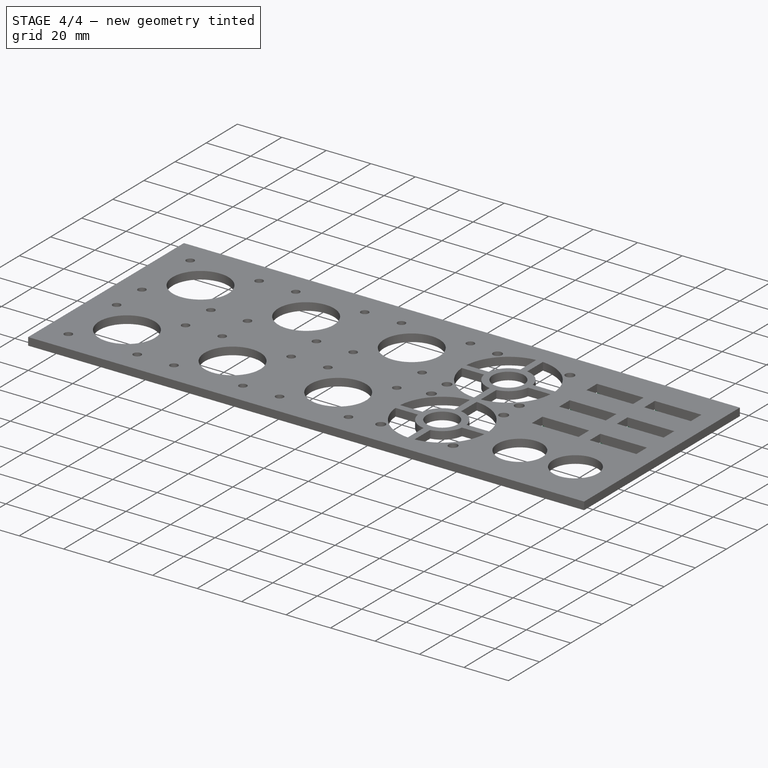
[diagram: stage 4 of 4 — iso view after this stage's code; geometry added in this stage tinted green]
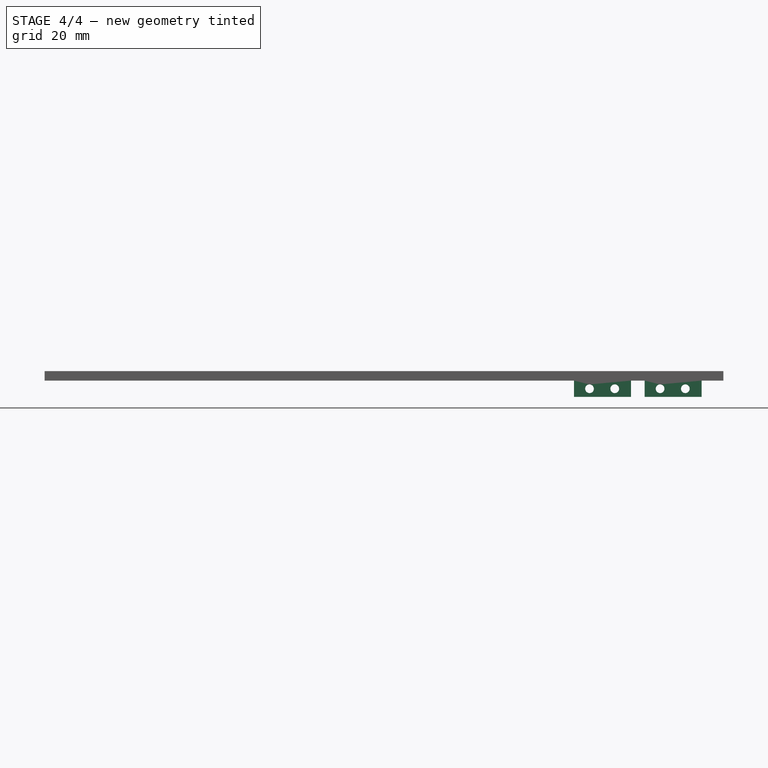
[diagram: stage 4 of 4 — front view after this stage's code; geometry added in this stage tinted green]
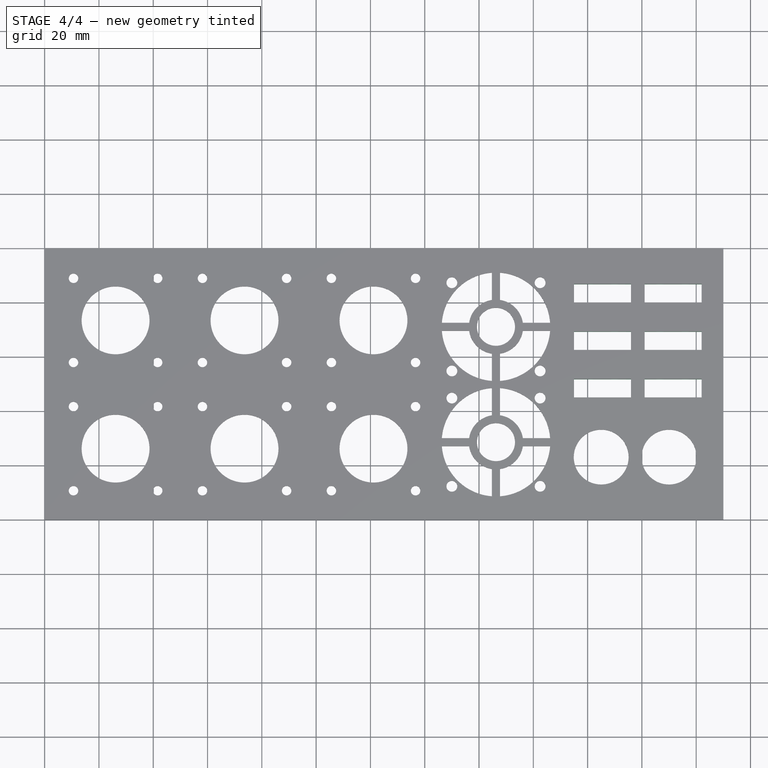
[diagram: stage 4 of 4 — top view after this stage's code; geometry added in this stage tinted green]
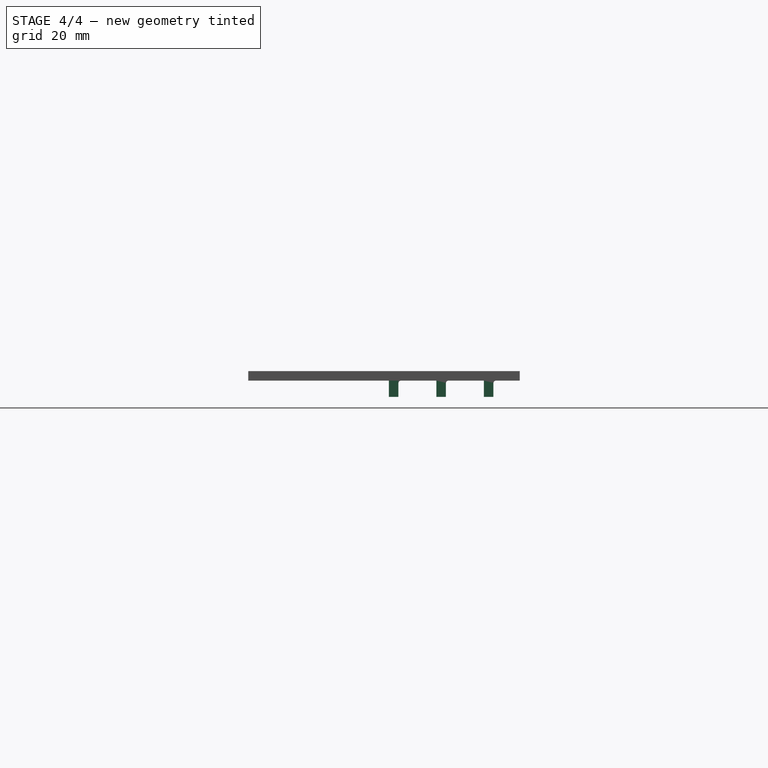
[diagram: stage 4 of 4 — right view after this stage's code; geometry added in this stage tinted green]
FEATURE [Sketcher::SketchObject] Sketch007
  ExternalGeometry = -> [LinearPattern002]
  Placement = pos=(0,0,0) rot=(1,0,0;3.14159rad)
  Support = -> LinearPattern002 [Face4]
  sketch-geometry (8):
    g0: LineSegment StartX=195 StartY=-86.8 StartZ=0 EndX=216 EndY=-86.8 EndZ=0
    g1: LineSegment StartX=216 StartY=-86.8 StartZ=0 EndX=216 EndY=-90.3 EndZ=0
    g2: LineSegment StartX=216 StartY=-90.3 StartZ=0 EndX=195 EndY=-90.3 EndZ=0
    g3: LineSegment StartX=195 StartY=-90.3 StartZ=0 EndX=195 EndY=-86.8 EndZ=0
    g4: LineSegment StartX=221 StartY=-86.8 StartZ=0 EndX=242 EndY=-86.8 EndZ=0
    g5: LineSegment StartX=242 StartY=-86.8 StartZ=0 EndX=242 EndY=-90.3 EndZ=0
    g6: LineSegment StartX=242 StartY=-90.3 StartZ=0 EndX=221 EndY=-90.3 EndZ=0
    g7: LineSegment StartX=221 StartY=-90.3 StartZ=0 EndX=221 EndY=-86.8 EndZ=0
  constraints (24):
    c: Coincident(g0,g1)
    c: Coincident(g1,g2)
    c: Coincident(g2,g3)
    c: Coincident(g3,g0)
    c: Horizontal(g0)
    c: Horizontal(g2)
    c: Vertical(g1)
    c: Vertical(g3)
    c: Coincident(g0,g-3)
    c: Coincident(g4,g5)
    c: Coincident(g5,g6)
    c: Coincident(g6,g7)
    c: Coincident(g7,g4)
    c: Horizontal(g4)
    c: Horizontal(g6)
    c: Vertical(g5)
    c: Vertical(g7)
    c: Coincident(g4,g-4)
    c: Coincident(g4,g-4)
    c: Coincident(g0,g-3)
    c: Equal(g3,g7)
    c: Equal(g7,g1)
    c: Equal(g1,g5)
    c: DistanceY(g3) = 3.5
FEATURE [PartDesign::Pad] Pad001
  Length = 6
  Length2 = 100
  Sketch = -> Sketch007
  Type = 0
FEATURE [PartDesign::LinearPattern] LinearPattern003
  Direction = -> Sketch007 [V_Axis]
  Length = 35
  Occurrences = 3
  Originals = -> [Pad001]
FEATURE [Sketcher::SketchObject] Sketch008
  ExternalGeometry = -> [LinearPattern003]
  Placement = pos=(0,90.3,0) rot=(0,0.707107,0.707107;3.14159rad)
  Support = -> LinearPattern003 [Face84]
  sketch-geometry (5):
    g0: Circle CenterX=-236 CenterY=-3 CenterZ=0 NormalX=0 NormalY=0 NormalZ=1 Radius=1.6
    g1: Circle CenterX=-226.7 CenterY=-3 CenterZ=0 NormalX=0 NormalY=0 NormalZ=1 Radius=1.6
    g2: Circle CenterX=-210 CenterY=-3 CenterZ=0 NormalX=0 NormalY=0 NormalZ=1 Radius=1.6
    g3: Circle CenterX=-200.7 CenterY=-3 CenterZ=0 NormalX=0 NormalY=0 NormalZ=1 Radius=1.6
    g4: LineSegment [constr] StartX=-236 StartY=-3 StartZ=0 EndX=-236 EndY=3.5 EndZ=0
  constraints (15):
    c: Radius(g3) = 1.6
    c: Equal(g3,g2)
    c: Equal(g3,g1)
    c: Equal(g3,g0)
    c: Coincident(g4,g0)
    c: PointOnObject(g4,g-3)
    c: Vertical(g4)
    c: DistanceY(g4) = 6.5
    c: DistanceY(g1,g0) = 0
    c: DistanceY(g1,g2) = 0
    c: DistanceY(g3,g2) = 0
    c: DistanceX(g1,g0) = -9.3
    c: DistanceX(g2,g3) = 9.3
    c: DistanceX(g2,g-4) = -6
    c: DistanceX(g0,g-5) = -6
FEATURE [PartDesign::Pocket] Pocket006
  Length = 5
  Sketch = -> Sketch008
  Type = 1
FEATURE [PartDesign::Fillet] Fillet
  Base = -> Pocket006 [Edge119,Edge89,Edge95,Edge111,Edge108]
  Radius = 1
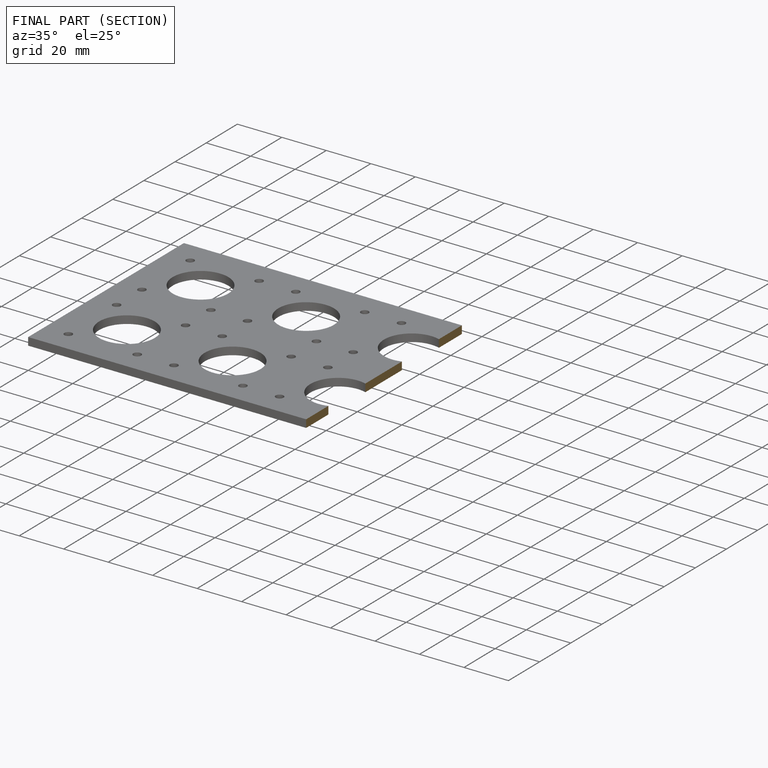
[diagram: finished part — half-section view (interior)]
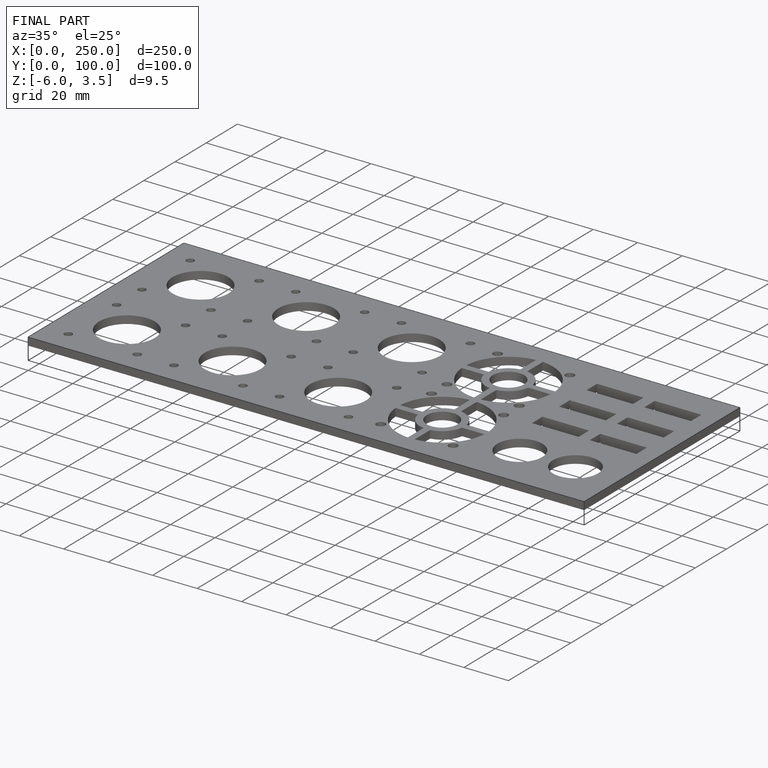
[diagram: finished part — iso view with bounding-box wireframe]
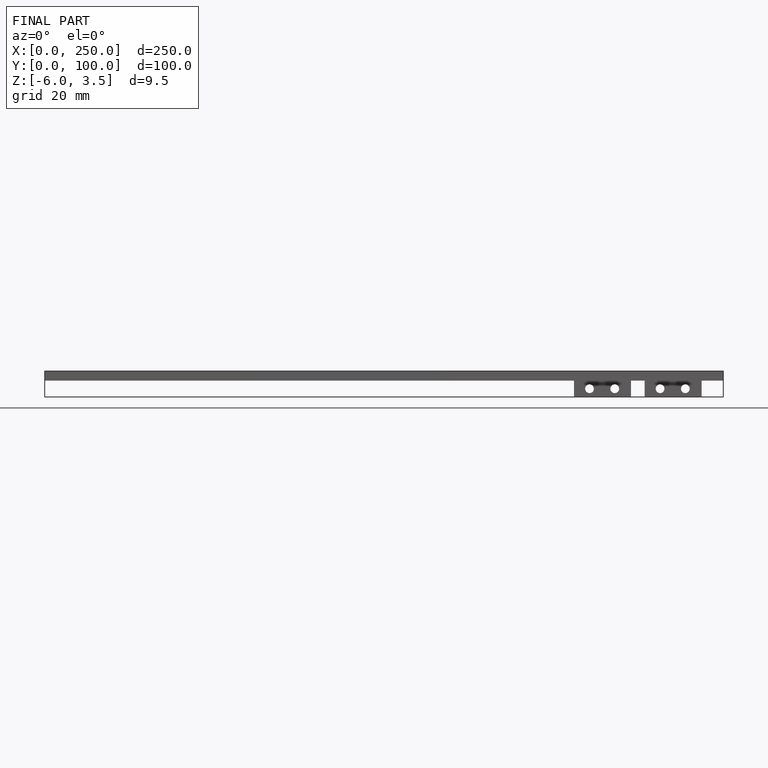
[diagram: finished part — front view with bounding-box wireframe]
